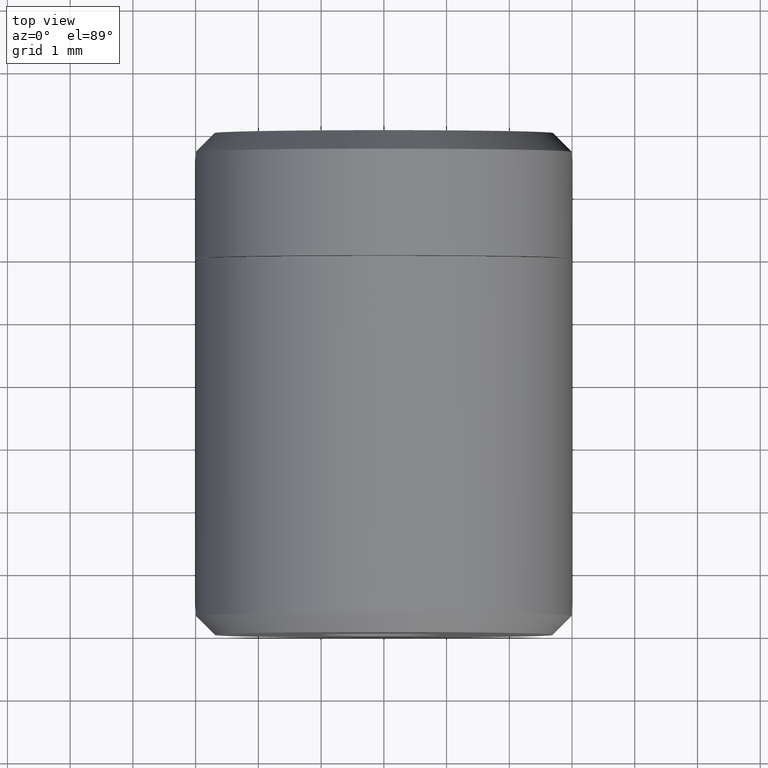
[diagram: clean part render]
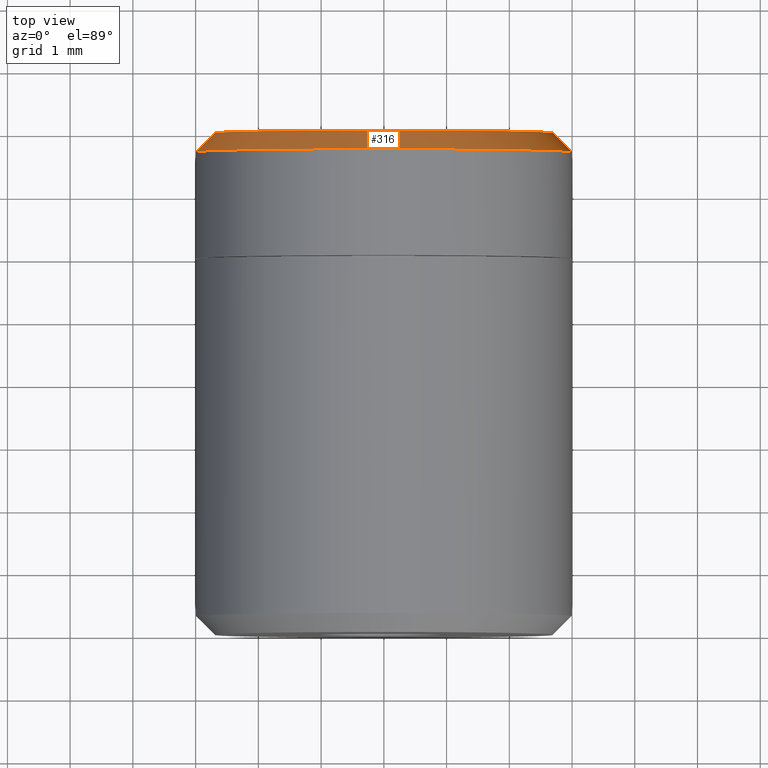
[diagram: same view with one face highlighted and labeled with its STEP entity id]
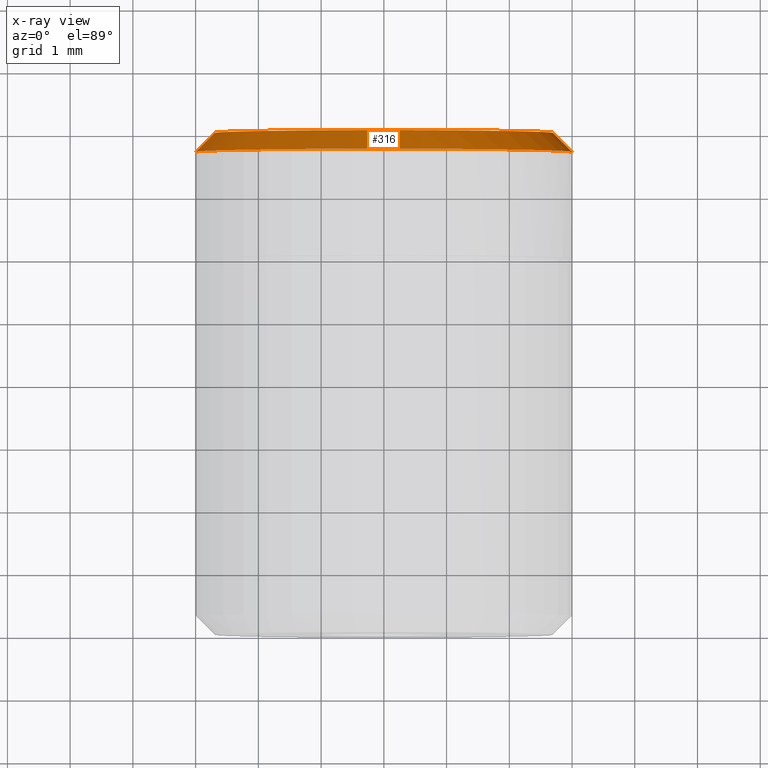
[diagram: x-ray of the same camera — body ghosted, the highlighted face saturated]
A machine part, top view. The second image highlights one B-rep face of the part: STEP entity #316.
The next image is the same camera in x-ray: the body ghosted, the highlighted face saturated — about 0% of this face is hidden behind the body in this view.
In plain terms, the highlighted face is a freeform B-spline surface patch.
Its self-contained STEP definition (entity closure, byte-faithful):
#62=CARTESIAN_POINT('',(1.054852533849337,7.700004999999996,2.808431258163427));
#63=VERTEX_POINT('',#62);
#64=CARTESIAN_POINT('',(0.0,7.700005000000000,2.999999999999997));
#65=VERTEX_POINT('',#64);
#66=CARTESIAN_POINT('',(1.054852533849337,7.700004999999996,2.808431258163427));
#67=CARTESIAN_POINT('',(0.544821391679655,7.700005000000000,2.999999999999997));
#68=CARTESIAN_POINT('',(0.0,7.700005000000000,2.999999999999997));
#76=(BOUNDED_CURVE()B_SPLINE_CURVE(2,(#66,#67,#68),.UNSPECIFIED.,.F.,.U.)B_SPLINE_CURVE_WITH_KNOTS((3,3),(0.440284249036416,0.500000000000000),.UNSPECIFIED.)CURVE()GEOMETRIC_REPRESENTATION_ITEM()RATIONAL_B_SPLINE_CURVE((0.893499650257582,0.930038645945653,1.0))REPRESENTATION_ITEM(''));
#77=EDGE_CURVE('',#63,#65,#76,.T.);
#79=CARTESIAN_POINT('',(-2.994404395265843,7.700004999999138,0.183145618607985));
#80=VERTEX_POINT('',#79);
#81=CARTESIAN_POINT('',(0.0,7.700005000000000,2.999999999999997));
#82=CARTESIAN_POINT('',(-2.822118200704293,7.700004999999998,2.999999999999998));
#83=CARTESIAN_POINT('',(-2.994404395265843,7.700004999999138,0.183145618607985));
#91=(BOUNDED_CURVE()B_SPLINE_CURVE(2,(#81,#82,#83),.UNSPECIFIED.,.F.,.U.)B_SPLINE_CURVE_WITH_KNOTS((3,3),(0.500000000000000,0.739332962241188),.UNSPECIFIED.)CURVE()GEOMETRIC_REPRESENTATION_ITEM()RATIONAL_B_SPLINE_CURVE((1.0,0.719603993284080,0.976072041671529))REPRESENTATION_ITEM(''));
#92=EDGE_CURVE('',#65,#80,#91,.T.);
#161=CARTESIAN_POINT('',(2.979028579091041,7.700004999999360,-0.354102703975353));
#162=VERTEX_POINT('',#161);
#163=CARTESIAN_POINT('',(2.979028579091041,7.700004999999360,-0.354102703975353));
#164=CARTESIAN_POINT('',(3.000000000000000,7.700005000000000,-0.177672358960785));
#165=CARTESIAN_POINT('',(3.0,7.700005000000000,-2.449213E-015));
#166=CARTESIAN_POINT('',(3.0,7.700005000000000,2.077829885096408));
#167=CARTESIAN_POINT('',(1.054852533849337,7.700004999999996,2.808431258163427));
#175=(BOUNDED_CURVE()B_SPLINE_CURVE(2,(#163,#164,#165,#166,#167),.UNSPECIFIED.,.F.,.U.)B_SPLINE_CURVE_WITH_KNOTS((3,2,3),(0.229562473515077,0.250000000000000,0.440284249036416),.UNSPECIFIED.)CURVE()GEOMETRIC_REPRESENTATION_ITEM()RATIONAL_B_SPLINE_CURVE((0.956026754186774,0.976055948332983,1.0,0.777068135240895,0.893499650257582))REPRESENTATION_ITEM(''));
#176=EDGE_CURVE('',#162,#63,#175,.T.);
#245=CARTESIAN_POINT('',(2.673679167568948,8.007499875000002,-0.317807297798417));
#246=CARTESIAN_POINT('',(2.682774675892689,8.007499875000001,-0.241287748712855));
#247=CARTESIAN_POINT('',(2.687478967839057,8.007499875000001,-0.164373255272359));
#248=CARTESIAN_POINT('',(2.851852223111413,8.007499875000002,2.523105712566699));
#249=CARTESIAN_POINT('',(0.164373255272356,8.007499875000001,2.687478967839054));
#250=CARTESIAN_POINT('',(-2.523105712566701,8.007499875000002,2.851852223111412));
#251=CARTESIAN_POINT('',(-2.687478967839057,8.007499875000001,0.164373255272354));
#252=CARTESIAN_POINT('',(2.986662314379052,7.692317628124998,-0.355010089124575));
#253=CARTESIAN_POINT('',(2.996822550607147,7.692317628124998,-0.269533096843963));
#254=CARTESIAN_POINT('',(3.002077530951266,7.692317628124998,-0.183614927687879));
#255=CARTESIAN_POINT('',(3.185692458639141,7.692317628124998,2.818462603263387));
#256=CARTESIAN_POINT('',(0.183614927687876,7.692317628124998,3.002077530951263));
#257=CARTESIAN_POINT('',(-2.818462603263390,7.692317628124998,3.185692458639140));
#258=CARTESIAN_POINT('',(-3.002077530951266,7.692317628124998,0.183614927687874));
#266=(BOUNDED_SURFACE()B_SPLINE_SURFACE(2,1,((#245,#252),(#246,#253),(#247,#254),(#248,#255),(#249,#256),(#250,#257),(#251,#258)),.UNSPECIFIED.,.F.,.F.,.U.)B_SPLINE_SURFACE_WITH_KNOTS((3,2,2,3),(2,2),(0.0,0.199331990922529,5.182631763985754,10.165931537048980),(0.0,0.445737979775999),.UNSPECIFIED.)GEOMETRIC_REPRESENTATION_ITEM()RATIONAL_B_SPLINE_SURFACE(((0.977505800795127,0.977505800795127),(0.988284271247462,0.988284271247462),(1.0,1.0),(0.707106781186548,0.707106781186548),(1.0,1.0),(0.707106781186548,0.707106781186548),(1.0,1.0)))REPRESENTATION_ITEM('')SURFACE());
#267=ORIENTED_EDGE('',*,*,#176,.F.);
#268=CARTESIAN_POINT('',(2.681126714191450,7.999999999999664,-0.318692551610173));
#269=VERTEX_POINT('',#268);
#270=CARTESIAN_POINT('',(2.681126714191450,7.999999999999664,-0.318692551610173));
#271=CARTESIAN_POINT('',(2.979028579091041,7.700004999999360,-0.354102703975353));
#272=QUASI_UNIFORM_CURVE('',1,(#270,#271),.UNSPECIFIED.,.F.,.U.);
#273=EDGE_CURVE('',#269,#162,#272,.T.);
#274=ORIENTED_EDGE('',*,*,#273,.F.);
#275=CARTESIAN_POINT('',(0.0,8.0,2.700000999999998));
#276=VERTEX_POINT('',#275);
#277=CARTESIAN_POINT('',(2.681126714191450,7.999999999999664,-0.318692551610173));
#278=CARTESIAN_POINT('',(2.700001000000000,8.0,-0.159905182286955));
#279=CARTESIAN_POINT('',(2.700001000000000,8.0,-2.449213E-015));
#280=CARTESIAN_POINT('',(2.700001000000000,8.0,2.700000999999998));
#281=CARTESIAN_POINT('',(0.0,8.0,2.700000999999998));
#289=(BOUNDED_CURVE()B_SPLINE_CURVE(2,(#277,#278,#279,#280,#281),.UNSPECIFIED.,.F.,.U.)B_SPLINE_CURVE_WITH_KNOTS((3,2,3),(0.229562473515311,0.250000000000000,0.500000000000000),.UNSPECIFIED.)CURVE()GEOMETRIC_REPRESENTATION_ITEM()RATIONAL_B_SPLINE_CURVE((0.956026754187232,0.976055948333256,1.0,0.707106781186548,1.0))REPRESENTATION_ITEM(''));
#290=EDGE_CURVE('',#269,#276,#289,.T.);
#291=ORIENTED_EDGE('',*,*,#290,.T.);
#292=CARTESIAN_POINT('',(-2.694964841242808,8.000000118294054,0.164831021563064));
#293=VERTEX_POINT('',#292);
#294=CARTESIAN_POINT('',(0.0,8.0,2.700000999999998));
#295=CARTESIAN_POINT('',(-2.539907489438265,8.0,2.700000999999997));
#296=CARTESIAN_POINT('',(-2.694964841242809,8.000000118294054,0.164831021563064));
#304=(BOUNDED_CURVE()B_SPLINE_CURVE(2,(#294,#295,#296),.UNSPECIFIED.,.F.,.U.)B_SPLINE_CURVE_WITH_KNOTS((3,3),(0.500000000000000,0.739332973639528),.UNSPECIFIED.)CURVE()GEOMETRIC_REPRESENTATION_ITEM()RATIONAL_B_SPLINE_CURVE((1.0,0.719603979930094,0.976072066100343))REPRESENTATION_ITEM(''));
#305=EDGE_CURVE('',#276,#293,#304,.T.);
#306=ORIENTED_EDGE('',*,*,#305,.T.);
#307=CARTESIAN_POINT('',(-2.694964841242808,8.000000118294054,0.164831021563064));
#308=CARTESIAN_POINT('',(-2.994404395265843,7.700004999999138,0.183145618607985));
#309=QUASI_UNIFORM_CURVE('',1,(#307,#308),.UNSPECIFIED.,.F.,.U.);
#310=EDGE_CURVE('',#293,#80,#309,.T.);
#311=ORIENTED_EDGE('',*,*,#310,.T.);
#312=ORIENTED_EDGE('',*,*,#92,.F.);
#313=ORIENTED_EDGE('',*,*,#77,.F.);
#314=EDGE_LOOP('',(#267,#274,#291,#306,#311,#312,#313));
#315=FACE_OUTER_BOUND('',#314,.T.);
#316=ADVANCED_FACE('',(#315),#266,.T.);